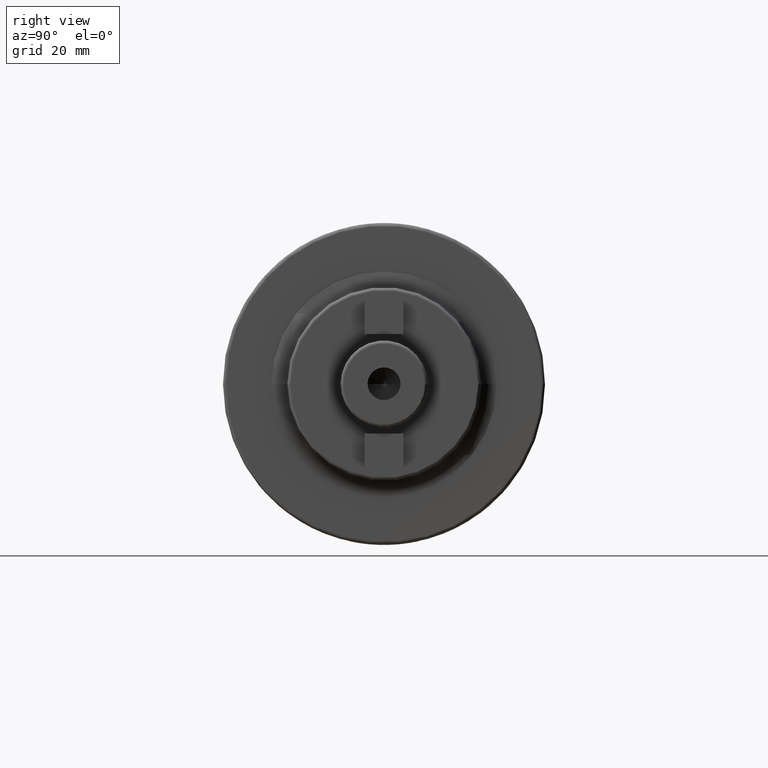
[diagram: clean part render]
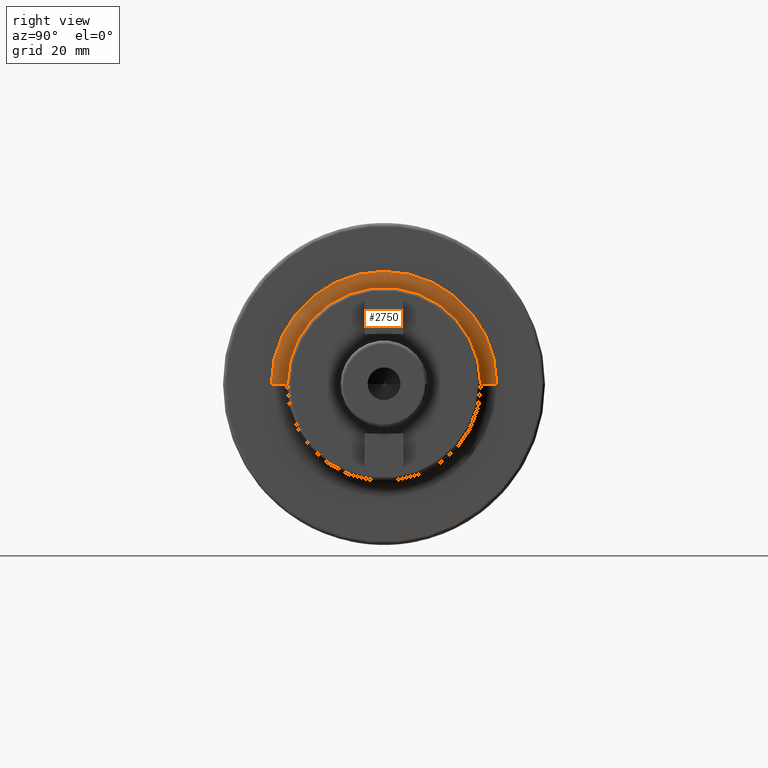
[diagram: same view with one face highlighted and labeled with its STEP entity id]
A machine part, right view. The second image highlights one B-rep face of the part: STEP entity #2750.
In plain terms, the highlighted toroidal blend (fillet) surface has major radius 35 mm and minor (blend) radius 5 mm.
Its self-contained STEP definition (entity closure, byte-faithful):
#839=CARTESIAN_POINT('',(3.8E1,0.E0,0.E0));
#840=DIRECTION('',(1.E0,0.E0,0.E0));
#841=DIRECTION('',(0.E0,1.E0,0.E0));
#842=AXIS2_PLACEMENT_3D('',#839,#840,#841);
#844=CARTESIAN_POINT('',(4.3E1,-3.5E1,1.529332216421E-13));
#845=DIRECTION('',(0.E0,0.E0,-1.E0));
#846=DIRECTION('',(-1.E0,0.E0,0.E0));
#847=AXIS2_PLACEMENT_3D('',#844,#845,#846);
#849=CARTESIAN_POINT('',(4.3E1,3.5E1,-1.568467578039E-13));
#850=DIRECTION('',(0.E0,0.E0,1.E0));
#851=DIRECTION('',(-1.E0,0.E0,0.E0));
#852=AXIS2_PLACEMENT_3D('',#849,#850,#851);
#859=CARTESIAN_POINT('',(4.3E1,0.E0,0.E0));
#860=DIRECTION('',(1.E0,0.E0,0.E0));
#861=DIRECTION('',(0.E0,1.E0,0.E0));
#862=AXIS2_PLACEMENT_3D('',#859,#860,#861);
#1571=CARTESIAN_POINT('',(3.8E1,-3.5E1,0.E0));
#1572=CARTESIAN_POINT('',(3.8E1,3.5E1,0.E0));
#1573=VERTEX_POINT('',#1571);
#1574=VERTEX_POINT('',#1572);
#1575=CARTESIAN_POINT('',(4.3E1,-3.E1,0.E0));
#1576=CARTESIAN_POINT('',(4.3E1,3.E1,0.E0));
#1577=VERTEX_POINT('',#1575);
#1578=VERTEX_POINT('',#1576);
#2738=CARTESIAN_POINT('',(4.3E1,0.E0,0.E0));
#2739=DIRECTION('',(1.E0,0.E0,0.E0));
#2740=DIRECTION('',(0.E0,9.999868641411E-1,-5.125577556927E-3));
#2741=AXIS2_PLACEMENT_3D('',#2738,#2739,#2740);
#2742=TOROIDAL_SURFACE('',#2741,3.5E1,5.E0);
#2743=ORIENTED_EDGE('',*,*,#2718,.F.);
#2744=ORIENTED_EDGE('',*,*,#2733,.T.);
#2746=ORIENTED_EDGE('',*,*,#2745,.T.);
#2747=ORIENTED_EDGE('',*,*,#2729,.F.);
#2748=EDGE_LOOP('',(#2743,#2744,#2746,#2747));
#2749=FACE_OUTER_BOUND('',#2748,.F.);
#2750=ADVANCED_FACE('',(#2749),#2742,.F.);
#843=CIRCLE('',#842,3.5E1);
#848=CIRCLE('',#847,5.E0);
#853=CIRCLE('',#852,5.E0);
#863=CIRCLE('',#862,3.E1);
#2718=EDGE_CURVE('',#1574,#1573,#843,.T.);
#2729=EDGE_CURVE('',#1573,#1577,#848,.T.);
#2733=EDGE_CURVE('',#1574,#1578,#853,.T.);
#2745=EDGE_CURVE('',#1578,#1577,#863,.T.);